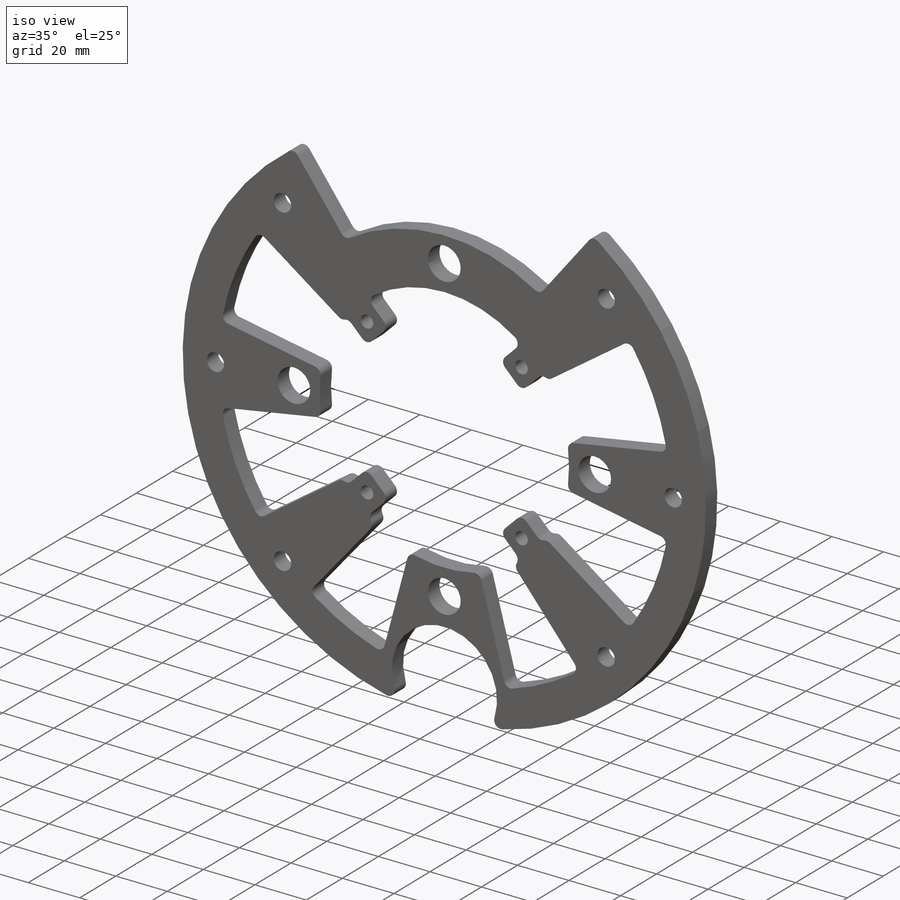
[diagram: iso view]
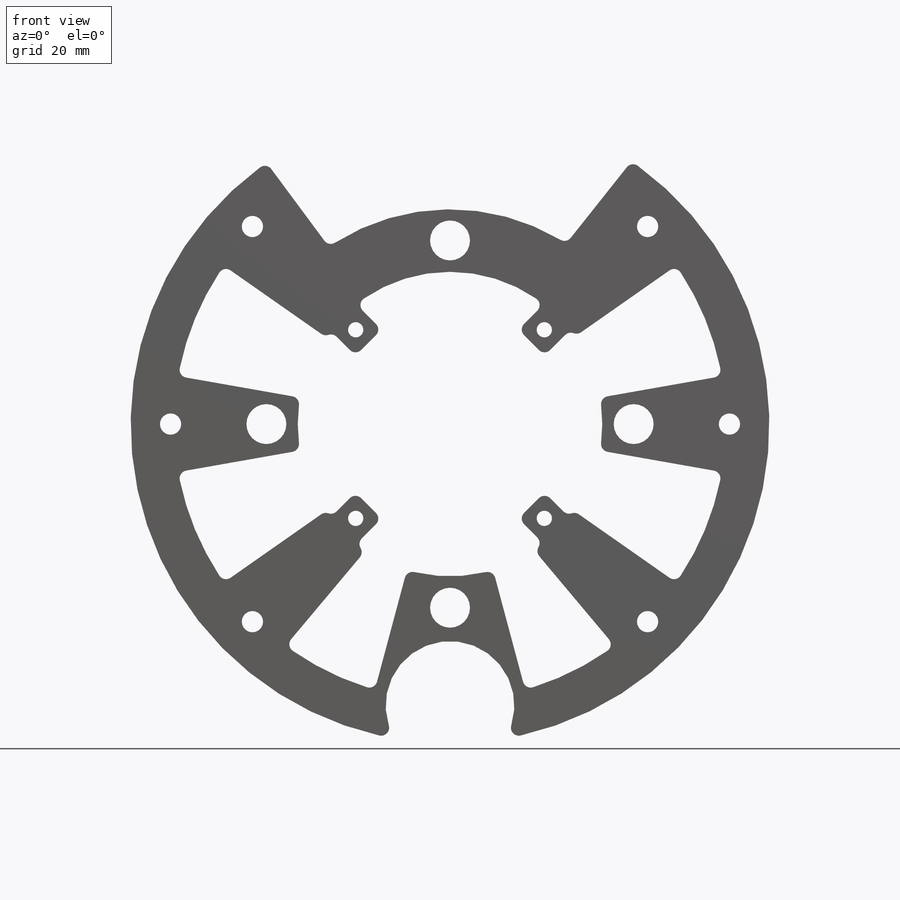
[diagram: front view]
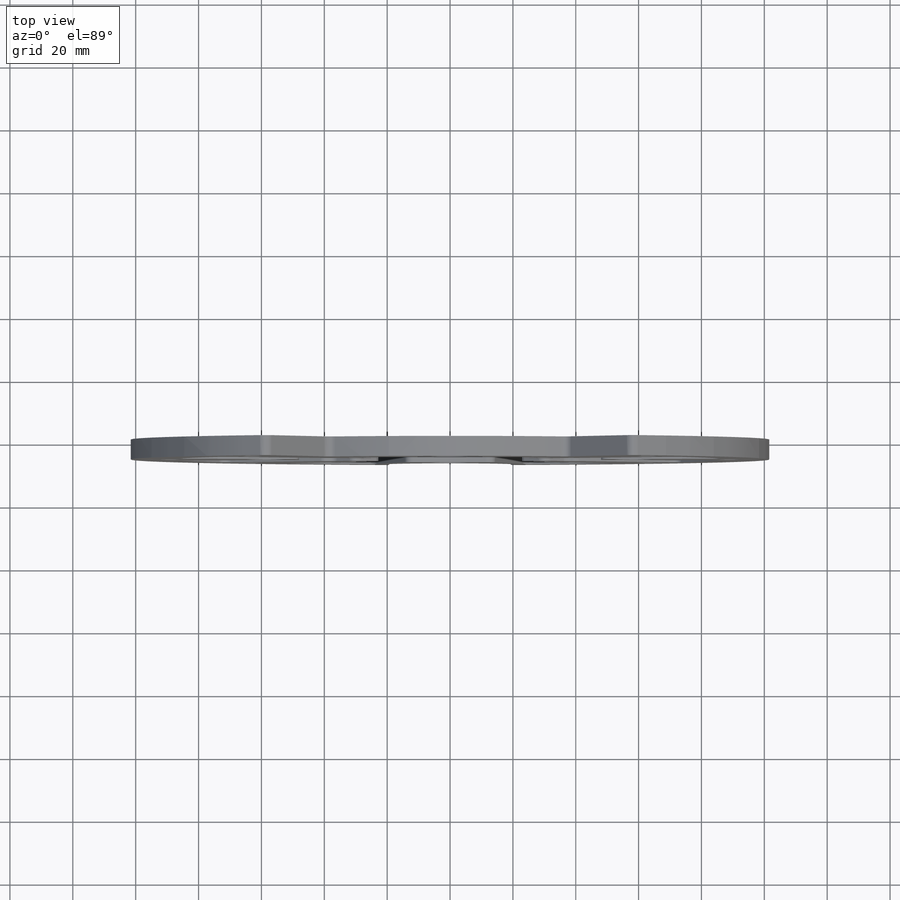
[diagram: top view]
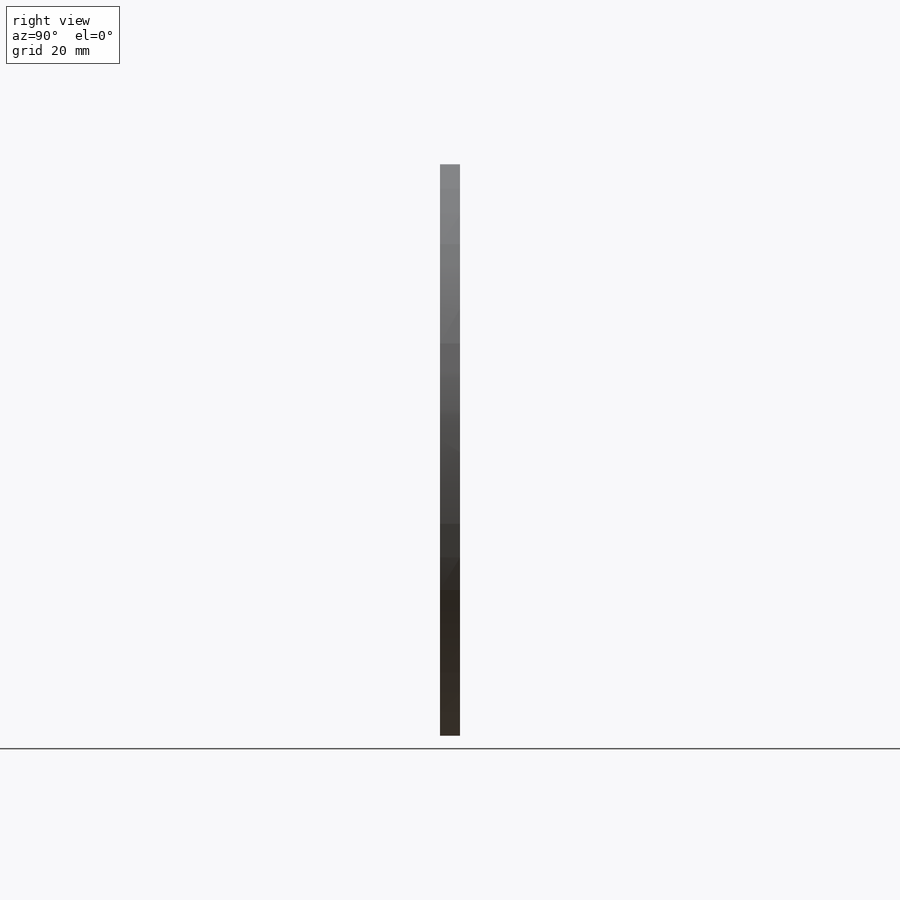
[diagram: right view]
SOLIDWORKS PART (.sldprt)
format: sldprt  version: not decoded by parser v0  size: 619,520 bytes
history: native  units: mm
features: fillet x32, sketch x31, hole x14, plane x2, material x1, extrude x1, cut_extrude x1, cut_revolve x1 (+11 scaffold rows collapsed)
feature tree (94):
  scaffold x11  (default folders/planes/origin — collapsed)
  material  "Material <not specified>"
  plane  "Plane1"  Offset=6.35mm
  sketch  "Sketch1"
  extrude  "Boss-Extrude1"  Depth=6.35mm
  sketch  "Sketch2"
  cut_extrude  "Cut-Extrude1"  Depth=6.35mm
  plane  "Plane2"
  sketch  "Sketch3"
  cut_revolve  "Cut-Revolve1"  Angle=360deg
  hole  "Hole1"  Diameter=4.852996mm Depth=6.35mm
  sketch  "Sketch5"
  sketch  "Sketch4"  dims[Diameter=~4.852996mm Depth=6.35mm]
  hole  "Hole2"  Diameter=4.852996mm Depth=6.35mm
  sketch  "Sketch7"
  sketch  "Sketch6"  dims[Diameter=~4.852996mm Depth=6.35mm]
  hole  "Hole3"  Diameter=4.852996mm Depth=6.35mm
  sketch  "Sketch9"
  sketch  "Sketch8"  dims[Diameter=~4.852996mm Depth=6.35mm]
  hole  "Hole4"  Diameter=4.852996mm Depth=6.35mm
  sketch  "Sketch11"
  sketch  "Sketch10"  dims[Diameter=~4.852996mm Depth=6.35mm]
  hole  "Hole5"  Diameter=12.7mm Depth=6.35mm
  sketch  "Sketch13"
  sketch  "Sketch12"  dims[Diameter=12.7mm Depth=6.35mm]
  hole  "Hole6"  Diameter=12.7mm Depth=6.35mm
  sketch  "Sketch15"
  sketch  "Sketch14"  dims[Diameter=12.7mm Depth=6.35mm]
  hole  "Hole7"  Diameter=12.7mm Depth=6.35mm
  sketch  "Sketch17"
  sketch  "Sketch16"  dims[Diameter=12.7mm Depth=6.35mm]
  hole  "Hole8"  Diameter=12.7mm Depth=6.35mm
  sketch  "Sketch19"
  sketch  "Sketch18"  dims[Diameter=12.7mm Depth=6.35mm]
  hole  "Hole9"  Diameter=6.7564mm Depth=6.35mm
  sketch  "Sketch21"
  sketch  "Sketch20"  dims[c1.D1=~97.659253deg c1.D2=~82.982399deg c1.Diameter=6.7564mm c2.D2=100.0mm c2.D3=~82.982399deg c2.D4=90.0deg c3.D3=~97.716715deg c3.Depth=6.35mm c3.Drill Angle=118.0deg]
  hole  "Hole10"  Diameter=6.7564mm Depth=6.35mm
  sketch  "Sketch23"
  sketch  "Sketch22"  dims[c1.D1=~97.659253deg c1.D2=~82.982399deg c1.Diameter=6.7564mm c2.D2=100.0mm c2.D3=~82.982399deg c2.D4=90.0deg c3.D3=~97.716715deg c3.Depth=6.35mm c3.Drill Angle=118.0deg]
  hole  "Hole11"  Diameter=6.7564mm Depth=6.35mm
  sketch  "Sketch25"
  sketch  "Sketch24"  dims[c1.D1=~97.659253deg c1.D2=~82.982399deg c1.Diameter=6.7564mm c2.D2=100.0mm c2.D3=~82.982399deg c2.D4=90.0deg c3.D3=~97.716715deg c3.Depth=6.35mm c3.Drill Angle=118.0deg]
  hole  "Hole12"  Diameter=6.7564mm Depth=6.35mm
  sketch  "Sketch27"
  sketch  "Sketch26"  dims[c1.D1=~97.659253deg c1.D2=~82.982399deg c1.Diameter=6.7564mm c2.D2=100.0mm c2.D3=~82.982399deg c2.D4=90.0deg c3.D3=~97.716715deg c3.Depth=6.35mm c3.Drill Angle=118.0deg]
  hole  "Hole13"  Diameter=6.7564mm Depth=6.35mm
  sketch  "Sketch29"
  sketch  "Sketch28"  dims[c1.D1=~97.659253deg c1.D2=~82.982399deg c1.Diameter=6.7564mm c2.D2=100.0mm c2.D3=~82.982399deg c2.D4=90.0deg c3.D3=~97.716715deg c3.Depth=6.35mm c3.Drill Angle=118.0deg]
  hole  "Hole14"  Diameter=6.7564mm Depth=6.35mm
  sketch  "Sketch31"
  sketch  "Sketch30"  dims[c1.D1=~97.659253deg c1.D2=~82.982399deg c1.Diameter=6.7564mm c2.D2=100.0mm c2.D3=~82.982399deg c2.D4=90.0deg c3.D3=~97.716715deg c3.Depth=6.35mm c3.Drill Angle=118.0deg]
  fillet  "Fillet1"  Radius=2.54mm
  fillet  "Fillet2"  Radius=2.54mm
  fillet  "Fillet3"  Radius=2.54mm
  fillet  "Fillet4"  Radius=2.54mm
  fillet  "Fillet5"  Radius=2.54mm
  fillet  "Fillet6"  Radius=2.54mm
  fillet  "Fillet7"  Radius=2.54mm
  fillet  "Fillet8"  Radius=2.54mm
  fillet  "Fillet9"  Radius=2.54mm
  fillet  "Fillet10"  Radius=2.54mm
  fillet  "Fillet11"  Radius=2.54mm
  fillet  "Fillet12"  Radius=2.54mm
  fillet  "Fillet13"  Radius=2.54mm
  fillet  "Fillet14"  Radius=2.54mm
  fillet  "Fillet15"  Radius=2.54mm
  fillet  "Fillet16"  Radius=2.54mm
  fillet  "Fillet17"  Radius=2.54mm
  fillet  "Fillet18"  Radius=2.54mm
  fillet  "Fillet19"  Radius=2.54mm
  fillet  "Fillet20"  Radius=2.54mm
  fillet  "Fillet21"  Radius=2.54mm
  fillet  "Fillet22"  Radius=2.54mm
  fillet  "Fillet23"  Radius=2.54mm
  fillet  "Fillet24"  Radius=2.54mm
  fillet  "Fillet25"  Radius=2.54mm
  fillet  "Fillet26"  Radius=2.54mm
  fillet  "Fillet27"  Radius=2.54mm
  fillet  "Fillet28"  Radius=2.54mm
  fillet  "Fillet29"  Radius=2.54mm
  fillet  "Fillet30"  Radius=2.54mm
  fillet  "Fillet31"  Radius=2.54mm
  fillet  "Fillet32"  Radius=2.54mm
decode coverage: 63 of 80 modeling features carry decoded parameters
note: ~ marks probable driven/reference dimensions
summary: Diameter pulled from absorbed wizard sketch
note: suppression state not decoded; provenance and decode notes live in map.json
